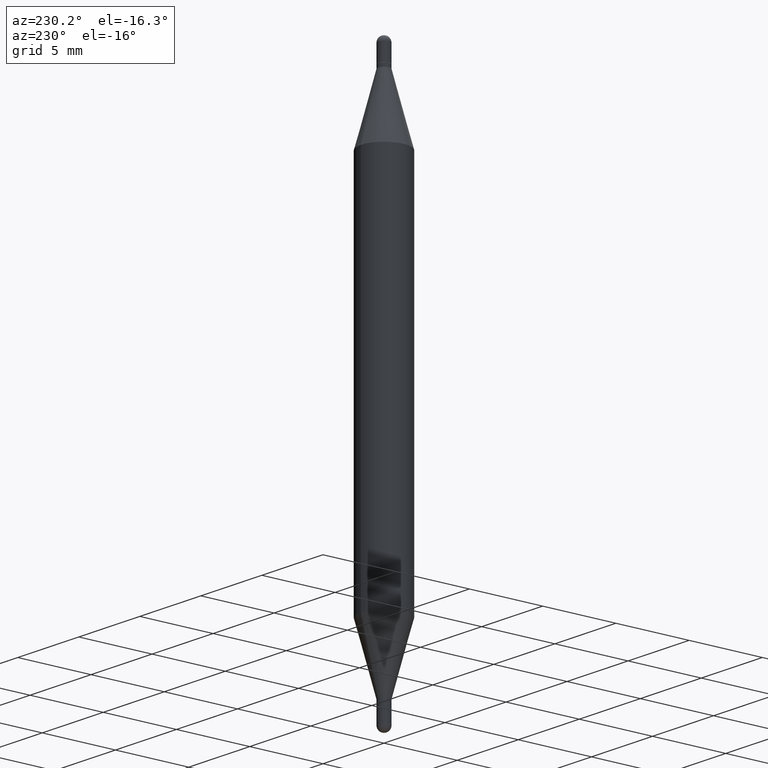
[diagram: clean part render]
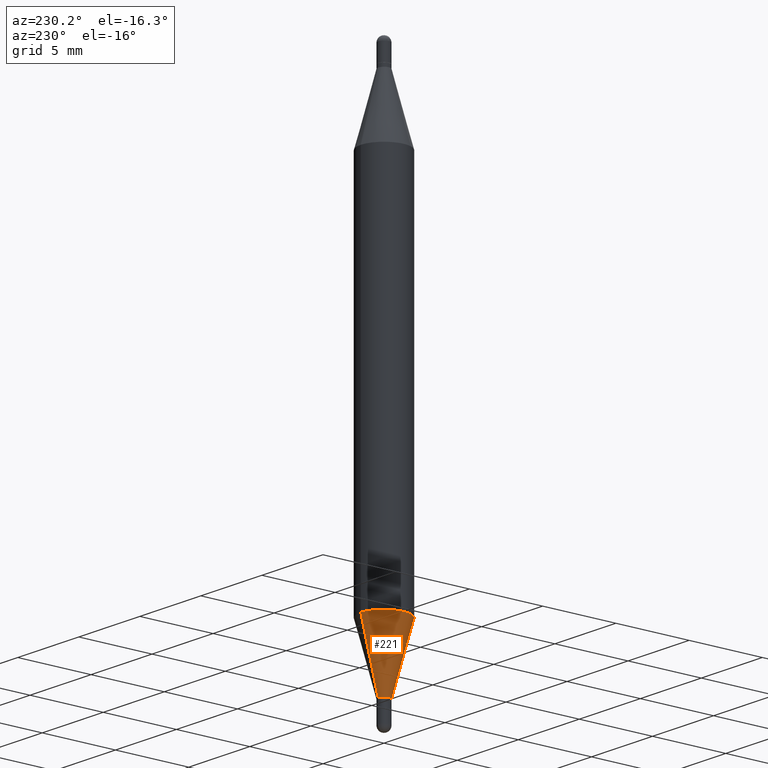
[diagram: same view with one face highlighted and labeled with its STEP entity id]
A machine part, auxiliary view. The second image highlights one B-rep face of the part: STEP entity #221.
In plain terms, the highlighted conical surface has half-angle 15 deg.
Its self-contained STEP definition (entity closure, byte-faithful):
#48 = LINE ( 'NONE', #488, #1086 ) ;
#78 = EDGE_CURVE ( 'NONE', #727, #841, #1031, .T. ) ;
#104 = DIRECTION ( 'NONE',  ( -2.448365453507603651E-29, 3.487333175010445731E-15, 1.000000000000000000 ) ) ;
#154 = EDGE_CURVE ( 'NONE', #727, #755, #303, .T. ) ;
#186 = VECTOR ( 'NONE', #607, 39.37007874015748854 ) ;
#221 = ADVANCED_FACE ( 'NONE', ( #628 ), #498, .T. ) ;
#252 = AXIS2_PLACEMENT_3D ( 'NONE', #885, #374, #451 ) ;
#290 = CARTESIAN_POINT ( 'NONE',  ( 3.067720669440277841E-29, -4.369512748547328200E-15, -1.252966817125019894 ) ) ;
#303 = CIRCLE ( 'NONE', #333, 0.01559999999999982234 ) ;
#325 = CIRCLE ( 'NONE', #395, 0.06249999999999999306 ) ;
#333 = AXIS2_PLACEMENT_3D ( 'NONE', #880, #104, #1063 ) ;
#335 = ORIENTED_EDGE ( 'NONE', *, *, #372, .T. ) ;
#372 = EDGE_CURVE ( 'NONE', #755, #1101, #48, .T. ) ;
#374 = DIRECTION ( 'NONE',  ( -2.448365453507603651E-29, 3.487333175010445731E-15, 1.000000000000000000 ) ) ;
#393 = EDGE_LOOP ( 'NONE', ( #1059, #670, #335, #662 ) ) ;
#395 = AXIS2_PLACEMENT_3D ( 'NONE', #290, #554, #635 ) ;
#402 = DIRECTION ( 'NONE',  ( -1.807323732225328167E-15, -0.2588190451025179084, 0.9659258262890690894 ) ) ;
#451 = DIRECTION ( 'NONE',  ( -6.982962677686265133E-15, -1.000000000000000000, 0.000000000000000000 ) ) ;
#488 = CARTESIAN_POINT ( 'NONE',  ( -1.089342177718695287E-16, -0.01560000000000480100, -1.428000000000000380 ) ) ;
#498 = CONICAL_SURFACE ( 'NONE', #252, 0.01559999999999982234, 0.2617993877991499629 ) ;
#511 = EDGE_CURVE ( 'NONE', #841, #1101, #325, .T. ) ;
#554 = DIRECTION ( 'NONE',  ( -2.448365453507603651E-29, 3.487333175010445731E-15, 1.000000000000000000 ) ) ;
#607 = DIRECTION ( 'NONE',  ( 1.839019923739597949E-15, 0.2588190451025246253, 0.9659258262890670910 ) ) ;
#628 = FACE_OUTER_BOUND ( 'NONE', #393, .T. ) ;
#635 = DIRECTION ( 'NONE',  ( -6.982962677686265922E-15, -1.000000000000000000, 4.370956789862821938E-15 ) ) ;
#662 = ORIENTED_EDGE ( 'NONE', *, *, #511, .F. ) ;
#670 = ORIENTED_EDGE ( 'NONE', *, *, #154, .T. ) ;
#698 = CARTESIAN_POINT ( 'NONE',  ( 1.108446667786093231E-16, 0.01559999999999484195, -1.428000000000000380 ) ) ;
#727 = VERTEX_POINT ( 'NONE', #1053 ) ;
#755 = VERTEX_POINT ( 'NONE', #913 ) ;
#841 = VERTEX_POINT ( 'NONE', #1087 ) ;
#880 = CARTESIAN_POINT ( 'NONE',  ( 3.496265867608858858E-29, -4.979911773914918445E-15, -1.428000000000000380 ) ) ;
#885 = CARTESIAN_POINT ( 'NONE',  ( 3.496265867608858858E-29, -4.979911773914918445E-15, -1.428000000000000380 ) ) ;
#913 = CARTESIAN_POINT ( 'NONE',  ( -1.089342177718695287E-16, -0.01560000000000480100, -1.428000000000000380 ) ) ;
#1027 = CARTESIAN_POINT ( 'NONE',  ( -4.364351673553608545E-16, -0.06250000000000435763, -1.252966817125019672 ) ) ;
#1031 = LINE ( 'NONE', #698, #186 ) ;
#1053 = CARTESIAN_POINT ( 'NONE',  ( 1.108446667786099887E-16, 0.01559999999999484195, -1.428000000000000380 ) ) ;
#1059 = ORIENTED_EDGE ( 'NONE', *, *, #78, .F. ) ;
#1063 = DIRECTION ( 'NONE',  ( -6.982962677686265133E-15, -1.000000000000000000, 0.000000000000000000 ) ) ;
#1086 = VECTOR ( 'NONE', #402, 39.37007874015748143 ) ;
#1087 = CARTESIAN_POINT ( 'NONE',  ( 4.287811248607390144E-16, 0.06249999999999562156, -1.252966817125020116 ) ) ;
#1101 = VERTEX_POINT ( 'NONE', #1027 ) ;